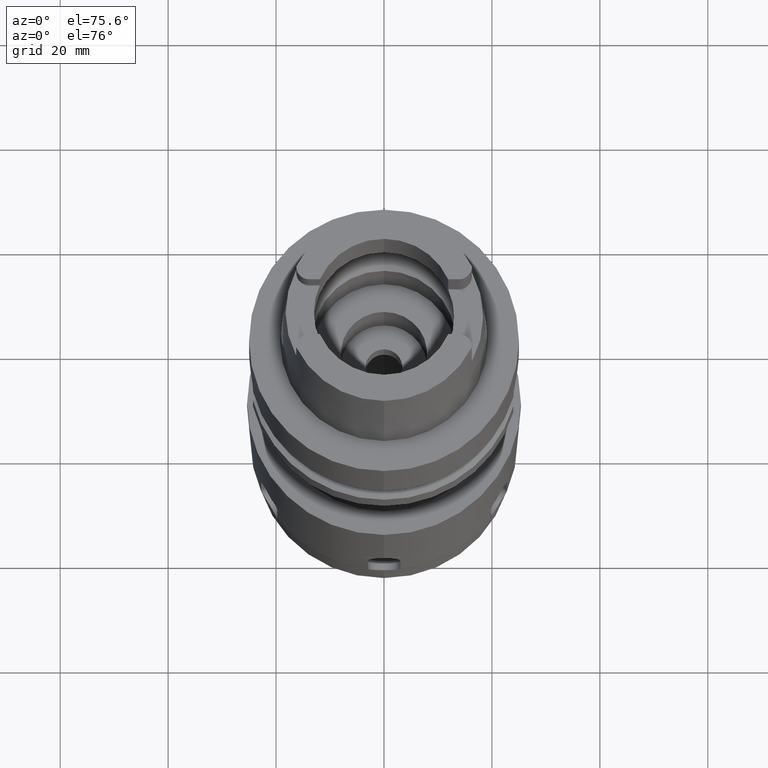
[diagram: clean part render]
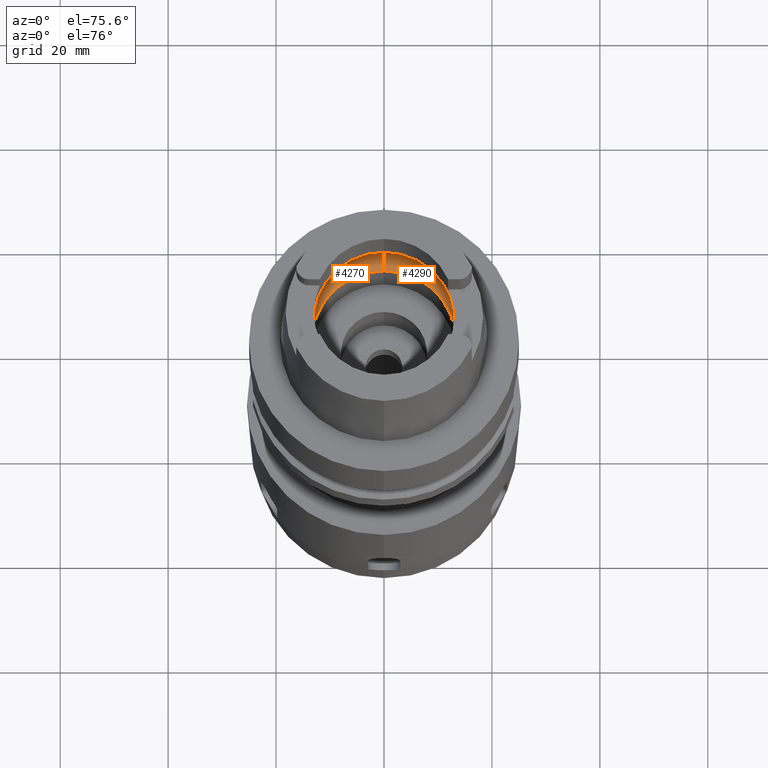
[diagram: same view with one multi-face feature highlighted, each face labeled with its STEP entity id]
A machine part, auxiliary view. The highlighted faces form ONE feature: a constant-radius fillet chain: 2 tangent blend faces with common blend radius 6 mm. The faces share edges in the B-rep.
Their STEP definitions:
[1] entity #4290 (Torus):
#592=CARTESIAN_POINT('',(0.E0,-1.E1,5.060987926547E0));
#593=DIRECTION('',(-1.E0,0.E0,0.E0));
#594=DIRECTION('',(0.E0,-5.5E-1,-8.351646544245E-1));
#595=AXIS2_PLACEMENT_3D('',#592,#593,#594);
#608=CARTESIAN_POINT('',(1.597371681169E1,0.E0,4.5E0));
#609=CARTESIAN_POINT('',(1.597371681169E1,-2.084869154195E-1,4.5E0));
#610=CARTESIAN_POINT('',(1.596977927161E1,-6.246018505122E-1,4.543550774118E0));
#611=CARTESIAN_POINT('',(1.594968354006E1,-1.220670860294E0,4.736062917634E0));
#612=CARTESIAN_POINT('',(1.592267588164E1,-1.580040572955E0,4.941576464407E0));
#613=CARTESIAN_POINT('',(1.590436354886E1,-1.746774199933E0,5.060987926547E0));
#618=CARTESIAN_POINT('',(0.E0,0.E0,5.060987926547E0));
#619=DIRECTION('',(0.E0,0.E0,-1.E0));
#620=DIRECTION('',(9.940227218040E-1,-1.091733874958E-1,0.E0));
#621=AXIS2_PLACEMENT_3D('',#618,#619,#620);
#626=CARTESIAN_POINT('',(0.E0,0.E0,5.000000000002E-2));
#627=DIRECTION('',(0.E0,0.E0,1.E0));
#628=DIRECTION('',(0.E0,-1.E0,0.E0));
#629=AXIS2_PLACEMENT_3D('',#626,#627,#628);
#634=CARTESIAN_POINT('',(0.E0,1.E1,5.060987926547E0));
#635=DIRECTION('',(1.E0,0.E0,0.E0));
#636=DIRECTION('',(0.E0,5.5E-1,-8.351646544245E-1));
#637=AXIS2_PLACEMENT_3D('',#634,#635,#636);
#642=CARTESIAN_POINT('',(0.E0,0.E0,5.060987926547E0));
#643=DIRECTION('',(0.E0,0.E0,-1.E0));
#644=DIRECTION('',(0.E0,1.E0,0.E0));
#645=AXIS2_PLACEMENT_3D('',#642,#643,#644);
#650=CARTESIAN_POINT('',(1.590436354886E1,1.746774199933E0,5.060987926547E0));
#651=CARTESIAN_POINT('',(1.592267653660E1,1.580034609521E0,4.941572193509E0));
#652=CARTESIAN_POINT('',(1.594968434089E1,1.220655140583E0,4.736055930978E0));
#653=CARTESIAN_POINT('',(1.596977934620E1,6.245935958384E-1,4.543549764920E0));
#654=CARTESIAN_POINT('',(1.597371681169E1,2.084834520804E-1,4.5E0));
#655=CARTESIAN_POINT('',(1.597371681169E1,0.E0,4.5E0));
#667=CARTESIAN_POINT('',(1.590436354886E1,-1.746774199933E0,5.060987926547E0));
#696=CARTESIAN_POINT('',(1.590436354886E1,1.746774199933E0,5.060987926547E0));
#3501=CARTESIAN_POINT('',(0.E0,-1.6E1,5.060987926547E0));
#3502=VERTEX_POINT('',#3501);
#3503=CARTESIAN_POINT('',(0.E0,1.6E1,5.060987926547E0));
#3504=VERTEX_POINT('',#3503);
#3509=VERTEX_POINT('',#667);
#3511=VERTEX_POINT('',#608);
#3512=VERTEX_POINT('',#696);
#3513=CARTESIAN_POINT('',(0.E0,1.33E1,5.000000000002E-2));
#3514=VERTEX_POINT('',#3513);
#3515=CARTESIAN_POINT('',(0.E0,-1.33E1,5.000000000002E-2));
#3516=VERTEX_POINT('',#3515);
#4271=CARTESIAN_POINT('',(0.E0,0.E0,5.060987926547E0));
#4272=DIRECTION('',(0.E0,0.E0,1.E0));
#4273=DIRECTION('',(0.E0,1.E0,0.E0));
#4274=AXIS2_PLACEMENT_3D('',#4271,#4272,#4273);
#4275=TOROIDAL_SURFACE('',#4274,1.E1,6.E0);
#4277=ORIENTED_EDGE('',*,*,#4276,.T.);
#4279=ORIENTED_EDGE('',*,*,#4278,.T.);
#4280=ORIENTED_EDGE('',*,*,#4265,.F.);
#4282=ORIENTED_EDGE('',*,*,#4281,.T.);
#4283=ORIENTED_EDGE('',*,*,#4261,.T.);
#4285=ORIENTED_EDGE('',*,*,#4284,.T.);
#4287=ORIENTED_EDGE('',*,*,#4286,.T.);
#4288=EDGE_LOOP('',(#4277,#4279,#4280,#4282,#4283,#4285,#4287));
#4289=FACE_OUTER_BOUND('',#4288,.F.);
#596=CIRCLE('',#595,6.E0);
#614=B_SPLINE_CURVE_WITH_KNOTS('',3,(#608,#609,#610,#611,#612,#613),
.UNSPECIFIED.,.F.,.F.,(4,1,1,4),(0.E0,3.333333333333E-1,6.666666666667E-1,1.E0),
.UNSPECIFIED.);
#622=CIRCLE('',#621,1.6E1);
#630=CIRCLE('',#629,1.33E1);
#638=CIRCLE('',#637,6.E0);
#646=CIRCLE('',#645,1.6E1);
#656=B_SPLINE_CURVE_WITH_KNOTS('',3,(#650,#651,#652,#653,#654,#655),
.UNSPECIFIED.,.F.,.F.,(4,1,1,4),(0.E0,3.333333333333E-1,6.666666666667E-1,1.E0),
.UNSPECIFIED.);
#4261=EDGE_CURVE('',#3514,#3504,#638,.T.);
#4265=EDGE_CURVE('',#3516,#3502,#596,.T.);
#4276=EDGE_CURVE('',#3511,#3509,#614,.T.);
#4278=EDGE_CURVE('',#3509,#3502,#622,.T.);
#4281=EDGE_CURVE('',#3516,#3514,#630,.T.);
#4284=EDGE_CURVE('',#3504,#3512,#646,.T.);
#4286=EDGE_CURVE('',#3512,#3511,#656,.T.);
#4290=ADVANCED_FACE('',(#4289),#4275,.F.);
[2] entity #4270 (Torus):
#513=CARTESIAN_POINT('',(-1.590436354886E1,-1.746774199933E0,5.060987926547E0));
#556=CARTESIAN_POINT('',(-1.590436354886E1,-1.746774199933E0,5.060987926547E0));
#557=CARTESIAN_POINT('',(-1.592267611280E1,-1.580038468239E0,4.941574957050E0));
#558=CARTESIAN_POINT('',(-1.594968384251E1,-1.220665334067E0,4.736060316230E0));
#559=CARTESIAN_POINT('',(-1.596977935446E1,-6.245964740959E-1,
4.543549839171E0));
#560=CARTESIAN_POINT('',(-1.597371681169E1,-2.084846034776E-1,4.5E0));
#561=CARTESIAN_POINT('',(-1.597371681169E1,0.E0,4.5E0));
#566=CARTESIAN_POINT('',(-1.597371681169E1,0.E0,4.5E0));
#567=CARTESIAN_POINT('',(-1.597371681169E1,2.084857350728E-1,4.5E0));
#568=CARTESIAN_POINT('',(-1.596977926471E1,6.245989062634E-1,4.543550685559E0));
#569=CARTESIAN_POINT('',(-1.594968403994E1,1.220660646988E0,4.736058520286E0));
#570=CARTESIAN_POINT('',(-1.592267630629E1,1.580036706527E0,4.941573695345E0));
#571=CARTESIAN_POINT('',(-1.590436354886E1,1.746774199933E0,5.060987926547E0));
#576=CARTESIAN_POINT('',(0.E0,0.E0,5.060987926547E0));
#577=DIRECTION('',(0.E0,0.E0,-1.E0));
#578=DIRECTION('',(-9.940227218040E-1,1.091733874958E-1,0.E0));
#579=AXIS2_PLACEMENT_3D('',#576,#577,#578);
#584=CARTESIAN_POINT('',(0.E0,0.E0,5.000000000002E-2));
#585=DIRECTION('',(0.E0,0.E0,1.E0));
#586=DIRECTION('',(0.E0,1.E0,0.E0));
#587=AXIS2_PLACEMENT_3D('',#584,#585,#586);
#592=CARTESIAN_POINT('',(0.E0,-1.E1,5.060987926547E0));
#593=DIRECTION('',(-1.E0,0.E0,0.E0));
#594=DIRECTION('',(0.E0,-5.5E-1,-8.351646544245E-1));
#595=AXIS2_PLACEMENT_3D('',#592,#593,#594);
#600=CARTESIAN_POINT('',(0.E0,0.E0,5.060987926547E0));
#601=DIRECTION('',(0.E0,0.E0,-1.E0));
#602=DIRECTION('',(0.E0,-1.E0,0.E0));
#603=AXIS2_PLACEMENT_3D('',#600,#601,#602);
#634=CARTESIAN_POINT('',(0.E0,1.E1,5.060987926547E0));
#635=DIRECTION('',(1.E0,0.E0,0.E0));
#636=DIRECTION('',(0.E0,5.5E-1,-8.351646544245E-1));
#637=AXIS2_PLACEMENT_3D('',#634,#635,#636);
#3500=VERTEX_POINT('',#513);
#3501=CARTESIAN_POINT('',(0.E0,-1.6E1,5.060987926547E0));
#3502=VERTEX_POINT('',#3501);
#3503=CARTESIAN_POINT('',(0.E0,1.6E1,5.060987926547E0));
#3504=VERTEX_POINT('',#3503);
#3505=CARTESIAN_POINT('',(-1.590436354886E1,1.746774199934E0,5.060987926547E0));
#3506=VERTEX_POINT('',#3505);
#3507=CARTESIAN_POINT('',(-1.597371681169E1,0.E0,4.5E0));
#3508=VERTEX_POINT('',#3507);
#3513=CARTESIAN_POINT('',(0.E0,1.33E1,5.000000000002E-2));
#3514=VERTEX_POINT('',#3513);
#3515=CARTESIAN_POINT('',(0.E0,-1.33E1,5.000000000002E-2));
#3516=VERTEX_POINT('',#3515);
#4253=CARTESIAN_POINT('',(0.E0,0.E0,5.060987926547E0));
#4254=DIRECTION('',(0.E0,0.E0,1.E0));
#4255=DIRECTION('',(0.E0,1.E0,0.E0));
#4256=AXIS2_PLACEMENT_3D('',#4253,#4254,#4255);
#4257=TOROIDAL_SURFACE('',#4256,1.E1,6.E0);
#4258=ORIENTED_EDGE('',*,*,#4234,.T.);
#4259=ORIENTED_EDGE('',*,*,#4245,.T.);
#4260=ORIENTED_EDGE('',*,*,#4216,.T.);
#4262=ORIENTED_EDGE('',*,*,#4261,.F.);
#4264=ORIENTED_EDGE('',*,*,#4263,.T.);
#4266=ORIENTED_EDGE('',*,*,#4265,.T.);
#4267=ORIENTED_EDGE('',*,*,#4209,.T.);
#4268=EDGE_LOOP('',(#4258,#4259,#4260,#4262,#4264,#4266,#4267));
#4269=FACE_OUTER_BOUND('',#4268,.F.);
#562=B_SPLINE_CURVE_WITH_KNOTS('',3,(#556,#557,#558,#559,#560,#561),
.UNSPECIFIED.,.F.,.F.,(4,1,1,4),(0.E0,3.333333333333E-1,6.666666666667E-1,1.E0),
.UNSPECIFIED.);
#572=B_SPLINE_CURVE_WITH_KNOTS('',3,(#566,#567,#568,#569,#570,#571),
.UNSPECIFIED.,.F.,.F.,(4,1,1,4),(0.E0,3.333333333333E-1,6.666666666667E-1,1.E0),
.UNSPECIFIED.);
#580=CIRCLE('',#579,1.6E1);
#588=CIRCLE('',#587,1.33E1);
#596=CIRCLE('',#595,6.E0);
#604=CIRCLE('',#603,1.6E1);
#638=CIRCLE('',#637,6.E0);
#4209=EDGE_CURVE('',#3502,#3500,#604,.T.);
#4216=EDGE_CURVE('',#3506,#3504,#580,.T.);
#4234=EDGE_CURVE('',#3500,#3508,#562,.T.);
#4245=EDGE_CURVE('',#3508,#3506,#572,.T.);
#4261=EDGE_CURVE('',#3514,#3504,#638,.T.);
#4263=EDGE_CURVE('',#3514,#3516,#588,.T.);
#4265=EDGE_CURVE('',#3516,#3502,#596,.T.);
#4270=ADVANCED_FACE('',(#4269),#4257,.F.);